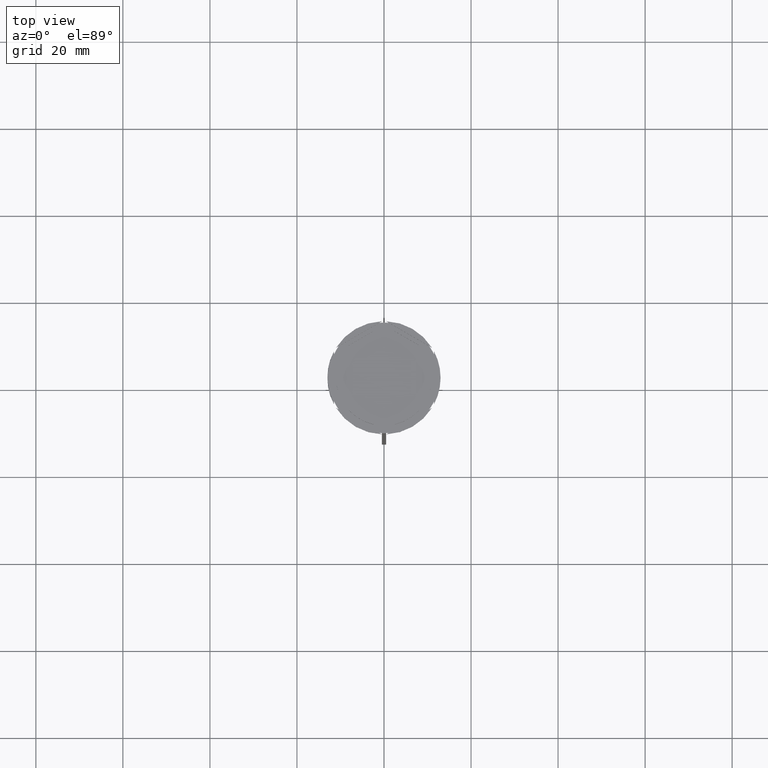
[diagram: clean part render]
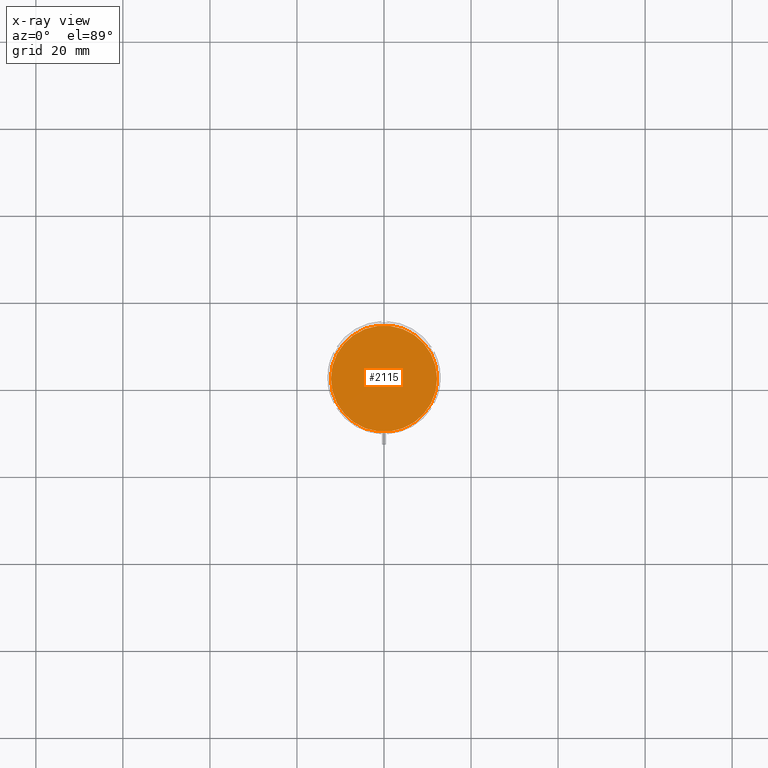
[diagram: x-ray — body ghosted, one internal face saturated and labeled with its STEP entity id]
A machine part, top view, then the same camera in x-ray: the body is ghosted and one INTERNAL B-rep face — a face not visible from any outside direction — is saturated and labeled: STEP entity #2115.
In plain terms, the highlighted planar face has unit normal (0, 0, -1).
Its self-contained STEP definition (entity closure, byte-faithful):
#172 = AXIS2_PLACEMENT_3D ( 'NONE', #2840, #1062, #1726 ) ;
#184 = VERTEX_POINT ( 'NONE', #1487 ) ;
#293 = EDGE_LOOP ( 'NONE', ( #653, #2744 ) ) ;
#316 = DIRECTION ( 'NONE',  ( -1.000000000000000000, 0.000000000000000000, -0.000000000000000000 ) ) ;
#479 = CIRCLE ( 'NONE', #2437, 12.20000000000000639 ) ;
#550 = CARTESIAN_POINT ( 'NONE',  ( 0.000000000000000000, 0.000000000000000000, -12.00000000000000000 ) ) ;
#565 = PLANE ( 'NONE',  #1947 ) ;
#578 = FACE_OUTER_BOUND ( 'NONE', #293, .T. ) ;
#653 = ORIENTED_EDGE ( 'NONE', *, *, #2418, .T. ) ;
#664 = EDGE_CURVE ( 'NONE', #184, #2478, #2769, .T. ) ;
#965 = CARTESIAN_POINT ( 'NONE',  ( 0.000000000000000000, 0.000000000000000000, -12.00000000000000000 ) ) ;
#1062 = DIRECTION ( 'NONE',  ( -0.000000000000000000, -0.000000000000000000, 1.000000000000000000 ) ) ;
#1487 = CARTESIAN_POINT ( 'NONE',  ( 12.20000000000000639, 1.512438796946981880E-15, -12.00000000000000000 ) ) ;
#1726 = DIRECTION ( 'NONE',  ( -1.000000000000000000, 0.000000000000000000, 0.000000000000000000 ) ) ;
#1852 = DIRECTION ( 'NONE',  ( -1.000000000000000000, 0.000000000000000000, 0.000000000000000000 ) ) ;
#1896 = DIRECTION ( 'NONE',  ( -0.000000000000000000, -0.000000000000000000, 1.000000000000000000 ) ) ;
#1947 = AXIS2_PLACEMENT_3D ( 'NONE', #550, #2734, #316 ) ;
#2115 = ADVANCED_FACE ( 'NONE', ( #578 ), #565, .F. ) ;
#2418 = EDGE_CURVE ( 'NONE', #2478, #184, #479, .T. ) ;
#2437 = AXIS2_PLACEMENT_3D ( 'NONE', #965, #1896, #1852 ) ;
#2478 = VERTEX_POINT ( 'NONE', #2767 ) ;
#2734 = DIRECTION ( 'NONE',  ( 0.000000000000000000, 0.000000000000000000, -1.000000000000000000 ) ) ;
#2744 = ORIENTED_EDGE ( 'NONE', *, *, #664, .T. ) ;
#2767 = CARTESIAN_POINT ( 'NONE',  ( -12.20000000000000639, 0.000000000000000000, -12.00000000000000000 ) ) ;
#2769 = CIRCLE ( 'NONE', #172, 12.20000000000000639 ) ;
#2840 = CARTESIAN_POINT ( 'NONE',  ( 0.000000000000000000, 0.000000000000000000, -12.00000000000000000 ) ) ;